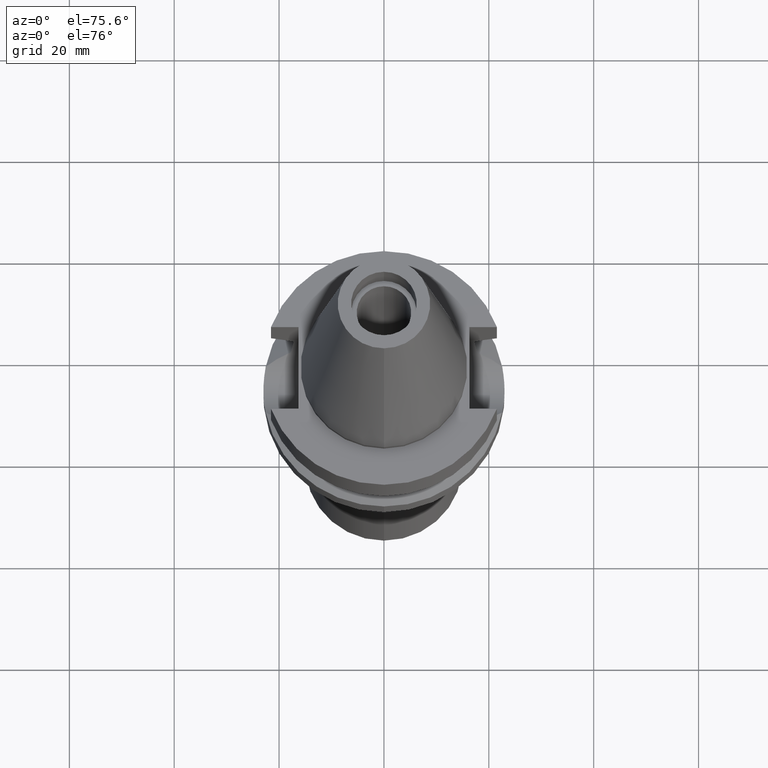
[diagram: clean part render]
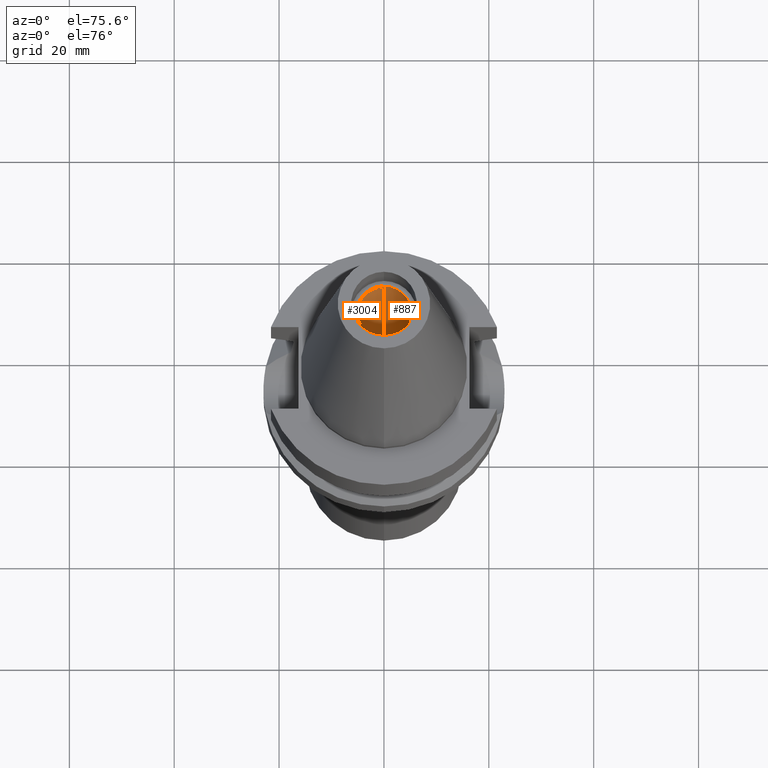
[diagram: same view with one multi-face feature highlighted, each face labeled with its STEP entity id]
A machine part, auxiliary view. The highlighted faces form ONE feature: a constant-radius fillet chain: 2 tangent blend faces with common blend radius 5.2 mm. The faces share edges in the B-rep.
Their STEP definitions:
[1] entity #887 (Cylinder):
#45 = DIRECTION ( 'NONE',  ( 0.0000000000000000000, -1.000000000000000000, 0.0000000000000000000 ) ) ;
#56 = AXIS2_PLACEMENT_3D ( 'NONE', #1929, #285, #45 ) ;
#57 = DIRECTION ( 'NONE',  ( 0.0000000000000000000, 0.0000000000000000000, 1.000000000000000000 ) ) ;
#61 = VECTOR ( 'NONE', #1042, 1000.000000000000000 ) ;
#200 = CIRCLE ( 'NONE', #239, 5.200000000000000178 ) ;
#225 = EDGE_CURVE ( 'NONE', #2273, #3017, #1047, .T. ) ;
#239 = AXIS2_PLACEMENT_3D ( 'NONE', #2917, #2938, #557 ) ;
#285 = DIRECTION ( 'NONE',  ( 0.0000000000000000000, 0.0000000000000000000, 1.000000000000000000 ) ) ;
#512 = VERTEX_POINT ( 'NONE', #2965 ) ;
#549 = VECTOR ( 'NONE', #57, 1000.000000000000000 ) ;
#557 = DIRECTION ( 'NONE',  ( 0.0000000000000000000, 1.000000000000000000, 0.0000000000000000000 ) ) ;
#575 = DIRECTION ( 'NONE',  ( 0.0000000000000000000, 0.0000000000000000000, -1.000000000000000000 ) ) ;
#725 = CARTESIAN_POINT ( 'NONE',  ( 0.0000000000000000000, -5.200000000000000178, 0.0000000000000000000 ) ) ;
#848 = LINE ( 'NONE', #2750, #61 ) ;
#877 = CARTESIAN_POINT ( 'NONE',  ( 0.0000000000000000000, -5.200000000000000178, 41.39999999999999858 ) ) ;
#887 = ADVANCED_FACE ( 'NONE', ( #2191 ), #1278, .F. ) ;
#925 = EDGE_CURVE ( 'NONE', #512, #2150, #200, .T. ) ;
#1042 = DIRECTION ( 'NONE',  ( 0.0000000000000000000, 0.0000000000000000000, 1.000000000000000000 ) ) ;
#1047 = CIRCLE ( 'NONE', #56, 5.200000000000000178 ) ;
#1242 = ORIENTED_EDGE ( 'NONE', *, *, #2769, .F. ) ;
#1278 = CYLINDRICAL_SURFACE ( 'NONE', #2037, 5.200000000000000178 ) ;
#1497 = DIRECTION ( 'NONE',  ( 0.0000000000000000000, -1.000000000000000000, 0.0000000000000000000 ) ) ;
#1542 = EDGE_CURVE ( 'NONE', #2150, #2273, #1722, .T. ) ;
#1635 = EDGE_LOOP ( 'NONE', ( #2898, #2889, #3057, #1242 ) ) ;
#1722 = LINE ( 'NONE', #2879, #549 ) ;
#1929 = CARTESIAN_POINT ( 'NONE',  ( 0.0000000000000000000, 0.0000000000000000000, 41.39999999999999858 ) ) ;
#2037 = AXIS2_PLACEMENT_3D ( 'NONE', #2669, #575, #1497 ) ;
#2150 = VERTEX_POINT ( 'NONE', #725 ) ;
#2191 = FACE_OUTER_BOUND ( 'NONE', #1635, .T. ) ;
#2273 = VERTEX_POINT ( 'NONE', #877 ) ;
#2669 = CARTESIAN_POINT ( 'NONE',  ( 0.0000000000000000000, 0.0000000000000000000, 0.0000000000000000000 ) ) ;
#2712 = CARTESIAN_POINT ( 'NONE',  ( 0.0000000000000000000, 5.200000000000000178, 41.39999999999999858 ) ) ;
#2750 = CARTESIAN_POINT ( 'NONE',  ( 0.0000000000000000000, 5.200000000000000178, 0.0000000000000000000 ) ) ;
#2769 = EDGE_CURVE ( 'NONE', #512, #3017, #848, .T. ) ;
#2879 = CARTESIAN_POINT ( 'NONE',  ( 0.0000000000000000000, -5.200000000000000178, 0.0000000000000000000 ) ) ;
#2889 = ORIENTED_EDGE ( 'NONE', *, *, #1542, .T. ) ;
#2898 = ORIENTED_EDGE ( 'NONE', *, *, #925, .T. ) ;
#2917 = CARTESIAN_POINT ( 'NONE',  ( 0.0000000000000000000, 0.0000000000000000000, 0.0000000000000000000 ) ) ;
#2938 = DIRECTION ( 'NONE',  ( 0.0000000000000000000, 0.0000000000000000000, -1.000000000000000000 ) ) ;
#2965 = CARTESIAN_POINT ( 'NONE',  ( 0.0000000000000000000, 5.200000000000000178, 0.0000000000000000000 ) ) ;
#3017 = VERTEX_POINT ( 'NONE', #2712 ) ;
#3057 = ORIENTED_EDGE ( 'NONE', *, *, #225, .T. ) ;
[2] entity #3004 (Cylinder):
#57 = DIRECTION ( 'NONE',  ( 0.0000000000000000000, 0.0000000000000000000, 1.000000000000000000 ) ) ;
#61 = VECTOR ( 'NONE', #1042, 1000.000000000000000 ) ;
#204 = ORIENTED_EDGE ( 'NONE', *, *, #1542, .F. ) ;
#478 = DIRECTION ( 'NONE',  ( 0.0000000000000000000, 0.0000000000000000000, -1.000000000000000000 ) ) ;
#512 = VERTEX_POINT ( 'NONE', #2965 ) ;
#549 = VECTOR ( 'NONE', #57, 1000.000000000000000 ) ;
#554 = CIRCLE ( 'NONE', #1348, 5.200000000000000178 ) ;
#571 = FACE_OUTER_BOUND ( 'NONE', #2973, .T. ) ;
#658 = CARTESIAN_POINT ( 'NONE',  ( 0.0000000000000000000, 0.0000000000000000000, 0.0000000000000000000 ) ) ;
#694 = ORIENTED_EDGE ( 'NONE', *, *, #2769, .T. ) ;
#725 = CARTESIAN_POINT ( 'NONE',  ( 0.0000000000000000000, -5.200000000000000178, 0.0000000000000000000 ) ) ;
#838 = DIRECTION ( 'NONE',  ( 0.0000000000000000000, 0.0000000000000000000, 1.000000000000000000 ) ) ;
#848 = LINE ( 'NONE', #2750, #61 ) ;
#855 = CIRCLE ( 'NONE', #1451, 5.200000000000000178 ) ;
#877 = CARTESIAN_POINT ( 'NONE',  ( 0.0000000000000000000, -5.200000000000000178, 41.39999999999999858 ) ) ;
#1042 = DIRECTION ( 'NONE',  ( 0.0000000000000000000, 0.0000000000000000000, 1.000000000000000000 ) ) ;
#1292 = EDGE_CURVE ( 'NONE', #3017, #2273, #855, .T. ) ;
#1299 = AXIS2_PLACEMENT_3D ( 'NONE', #2518, #2696, #2250 ) ;
#1309 = ORIENTED_EDGE ( 'NONE', *, *, #1292, .T. ) ;
#1348 = AXIS2_PLACEMENT_3D ( 'NONE', #658, #478, #1633 ) ;
#1451 = AXIS2_PLACEMENT_3D ( 'NONE', #2960, #838, #1460 ) ;
#1460 = DIRECTION ( 'NONE',  ( 0.0000000000000000000, 1.000000000000000000, 0.0000000000000000000 ) ) ;
#1542 = EDGE_CURVE ( 'NONE', #2150, #2273, #1722, .T. ) ;
#1633 = DIRECTION ( 'NONE',  ( 0.0000000000000000000, -1.000000000000000000, 0.0000000000000000000 ) ) ;
#1722 = LINE ( 'NONE', #2879, #549 ) ;
#1755 = CYLINDRICAL_SURFACE ( 'NONE', #1299, 5.200000000000000178 ) ;
#2044 = ORIENTED_EDGE ( 'NONE', *, *, #2384, .T. ) ;
#2150 = VERTEX_POINT ( 'NONE', #725 ) ;
#2250 = DIRECTION ( 'NONE',  ( 0.0000000000000000000, -1.000000000000000000, 0.0000000000000000000 ) ) ;
#2273 = VERTEX_POINT ( 'NONE', #877 ) ;
#2384 = EDGE_CURVE ( 'NONE', #2150, #512, #554, .T. ) ;
#2518 = CARTESIAN_POINT ( 'NONE',  ( 0.0000000000000000000, 0.0000000000000000000, 0.0000000000000000000 ) ) ;
#2696 = DIRECTION ( 'NONE',  ( 0.0000000000000000000, 0.0000000000000000000, -1.000000000000000000 ) ) ;
#2712 = CARTESIAN_POINT ( 'NONE',  ( 0.0000000000000000000, 5.200000000000000178, 41.39999999999999858 ) ) ;
#2750 = CARTESIAN_POINT ( 'NONE',  ( 0.0000000000000000000, 5.200000000000000178, 0.0000000000000000000 ) ) ;
#2769 = EDGE_CURVE ( 'NONE', #512, #3017, #848, .T. ) ;
#2879 = CARTESIAN_POINT ( 'NONE',  ( 0.0000000000000000000, -5.200000000000000178, 0.0000000000000000000 ) ) ;
#2960 = CARTESIAN_POINT ( 'NONE',  ( 0.0000000000000000000, 0.0000000000000000000, 41.39999999999999858 ) ) ;
#2965 = CARTESIAN_POINT ( 'NONE',  ( 0.0000000000000000000, 5.200000000000000178, 0.0000000000000000000 ) ) ;
#2973 = EDGE_LOOP ( 'NONE', ( #1309, #204, #2044, #694 ) ) ;
#3004 = ADVANCED_FACE ( 'NONE', ( #571 ), #1755, .F. ) ;
#3017 = VERTEX_POINT ( 'NONE', #2712 ) ;